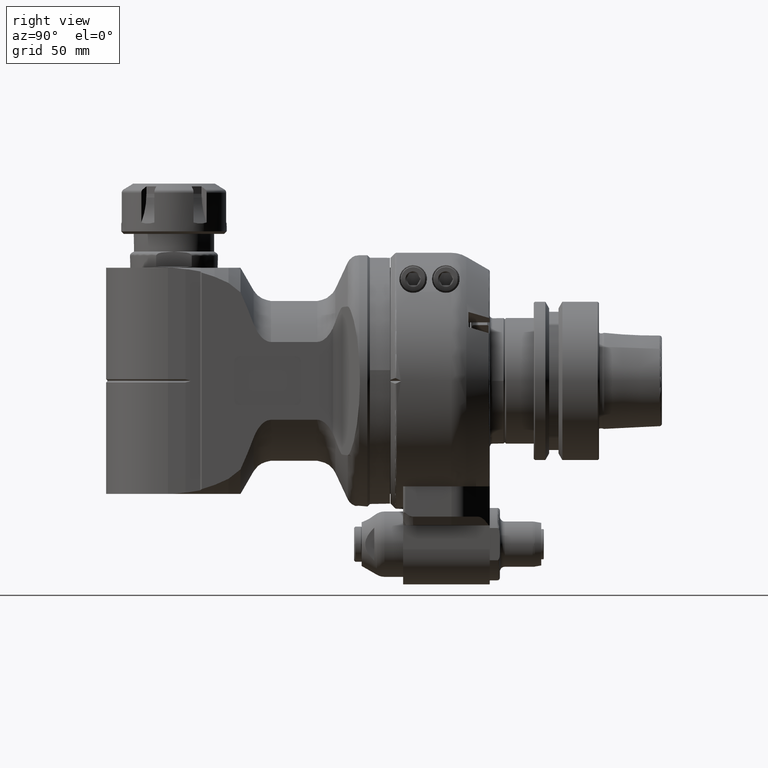
[diagram: clean part render]
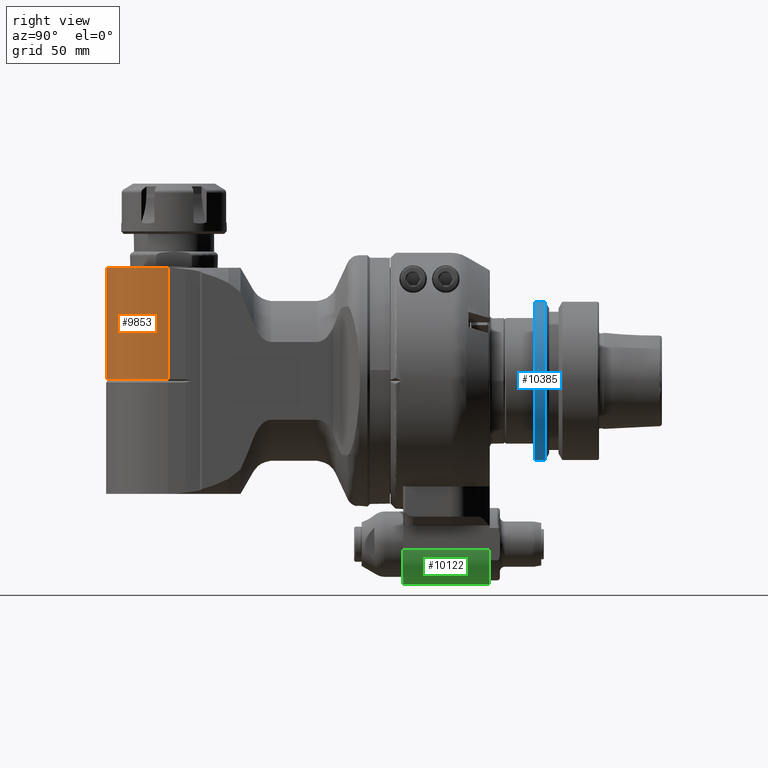
[diagram: same view with three faces highlighted in distinct colors, each labeled with its STEP entity id]
A machine part, right view with three faces highlighted in distinct colors.
Their STEP definitions:

[orange] entity #9853 — the highlighted cylindrical surface (partial cylindrical patch) has radius 27 mm, axis along (-0, 0, -1).
#608=CYLINDRICAL_SURFACE('',#10594,27.);
#811=CIRCLE('',#10592,27.);
#813=CIRCLE('',#10595,27.);
#1382=FACE_OUTER_BOUND('',#2006,.T.);
#2006=EDGE_LOOP('',(#6784,#6785,#6786,#6787));
#2701=LINE('',#15636,#3355);
#2702=LINE('',#15639,#3356);
#3355=VECTOR('',#11999,44.33431457505);
#3356=VECTOR('',#12002,44.33431457505);
#4089=VERTEX_POINT('',#15600);
#4090=VERTEX_POINT('',#15601);
#4098=VERTEX_POINT('',#15635);
#4099=VERTEX_POINT('',#15637);
#5127=EDGE_CURVE('',#4089,#4090,#811,.T.);
#5137=EDGE_CURVE('',#4089,#4098,#2701,.T.);
#5138=EDGE_CURVE('',#4099,#4098,#813,.T.);
#5139=EDGE_CURVE('',#4099,#4090,#2702,.T.);
#6784=ORIENTED_EDGE('',*,*,#5127,.F.);
#6785=ORIENTED_EDGE('',*,*,#5137,.T.);
#6786=ORIENTED_EDGE('',*,*,#5138,.F.);
#6787=ORIENTED_EDGE('',*,*,#5139,.T.);
#9853=ADVANCED_FACE('',(#1382),#608,.T.);
#10592=AXIS2_PLACEMENT_3D('',#15602,#11991,#11992);
#10594=AXIS2_PLACEMENT_3D('',#15634,#11997,#11998);
#10595=AXIS2_PLACEMENT_3D('',#15638,#12000,#12001);
#11991=DIRECTION('center_axis',(0.,-1.,0.));
#11992=DIRECTION('ref_axis',(0.0871557427475262,0.,-0.996194698091757));
#11997=DIRECTION('center_axis',(0.,1.,0.));
#11998=DIRECTION('ref_axis',(1.,0.,1.22464679914735E-16));
#11999=DIRECTION('',(2.660469554266E-14,1.,0.));
#12000=DIRECTION('center_axis',(0.,1.,0.));
#12001=DIRECTION('ref_axis',(1.,0.,0.));
#12002=DIRECTION('',(2.75663110442E-14,-1.,0.));
#15600=CARTESIAN_POINT('',(92.35320505419,-45.,-26.89725684848));
#15601=CARTESIAN_POINT('',(92.35320505419,-45.,26.89725684848));
#15602=CARTESIAN_POINT('Origin',(90.,-45.,0.));
#15634=CARTESIAN_POINT('Origin',(90.,-54.0000024,0.));
#15635=CARTESIAN_POINT('',(92.35320505419,-0.6656854249492,-26.89725684848));
#15636=CARTESIAN_POINT('',(92.35320505419,-45.,-26.89725684848));
#15637=CARTESIAN_POINT('',(92.35320505419,-0.6656854249492,26.89725684848));
#15638=CARTESIAN_POINT('Origin',(90.,-0.6656854249492,0.));
#15639=CARTESIAN_POINT('',(92.35320505419,-0.6656854249492,26.89725684848));

[blue] entity #10385 — the highlighted cylindrical surface (bore or boss wall) has radius 31.5 mm, axis along (0, 1, 0).
#750=CYLINDRICAL_SURFACE('',#11654,31.5);
#1308=CIRCLE('',#11652,31.5);
#1309=CIRCLE('',#11653,31.5);
#1310=CIRCLE('',#11655,31.5);
#1914=FACE_OUTER_BOUND('',#2616,.T.);
#2616=EDGE_LOOP('',(#9372,#9373,#9374,#9375,#9376));
#3270=LINE('',#21110,#3924);
#3924=VECTOR('',#14688,31.5);
#4907=VERTEX_POINT('',#21103);
#4908=VERTEX_POINT('',#21104);
#4909=VERTEX_POINT('',#21109);
#6403=EDGE_CURVE('',#4907,#4908,#1308,.T.);
#6405=EDGE_CURVE('',#4908,#4907,#1309,.T.);
#6406=EDGE_CURVE('',#4907,#4909,#3270,.T.);
#6407=EDGE_CURVE('',#4909,#4909,#1310,.T.);
#9372=ORIENTED_EDGE('',*,*,#6403,.F.);
#9373=ORIENTED_EDGE('',*,*,#6406,.T.);
#9374=ORIENTED_EDGE('',*,*,#6407,.F.);
#9375=ORIENTED_EDGE('',*,*,#6406,.F.);
#9376=ORIENTED_EDGE('',*,*,#6405,.F.);
#10385=ADVANCED_FACE('',(#1914),#750,.T.);
#11652=AXIS2_PLACEMENT_3D('',#21105,#14681,#14682);
#11653=AXIS2_PLACEMENT_3D('',#21107,#14684,#14685);
#11654=AXIS2_PLACEMENT_3D('',#21108,#14686,#14687);
#11655=AXIS2_PLACEMENT_3D('',#21111,#14689,#14690);
#14681=DIRECTION('center_axis',(0.,1.,0.));
#14682=DIRECTION('ref_axis',(0.,0.,1.));
#14684=DIRECTION('center_axis',(0.,1.,0.));
#14685=DIRECTION('ref_axis',(0.,0.,1.));
#14686=DIRECTION('center_axis',(0.,1.,0.));
#14687=DIRECTION('ref_axis',(0.,0.,-1.));
#14688=DIRECTION('',(0.,-1.,0.));
#14689=DIRECTION('center_axis',(0.,-1.,0.));
#14690=DIRECTION('ref_axis',(0.707106781186547,0.,0.707106781186547));
#21103=CARTESIAN_POINT('',(3.85763741731416E-15,61.62250092524,31.5));
#21104=CARTESIAN_POINT('',(3.85763741731431E-15,61.6225009252421,-31.5000000000012));
#21105=CARTESIAN_POINT('Origin',(0.,61.62250092524,0.));
#21107=CARTESIAN_POINT('Origin',(0.,61.62250092524,0.));
#21108=CARTESIAN_POINT('Origin',(0.,54.9,0.));
#21109=CARTESIAN_POINT('',(3.85763741731416E-15,57.5,31.5));
#21110=CARTESIAN_POINT('',(3.85763741731416E-15,54.9,31.5));
#21111=CARTESIAN_POINT('Origin',(0.,57.5,0.));

[green] entity #10122 — the highlighted cylindrical surface (edge-blend (fillet) strip) has radius 14 mm, axis along (0, 1, 0).
#692=CYLINDRICAL_SURFACE('',#11145,14.);
#986=CIRCLE('',#10982,14.);
#1059=CIRCLE('',#11119,14.);
#1651=FACE_OUTER_BOUND('',#2313,.T.);
#2313=EDGE_LOOP('',(#8120,#8121,#8122,#8123));
#3004=LINE('',#19020,#3658);
#3005=LINE('',#19035,#3659);
#3658=VECTOR('',#13396,34.5);
#3659=VECTOR('',#13405,34.5);
#4382=VERTEX_POINT('',#17208);
#4383=VERTEX_POINT('',#17210);
#4526=VERTEX_POINT('',#18825);
#4527=VERTEX_POINT('',#18827);
#5578=EDGE_CURVE('',#4382,#4383,#986,.T.);
#5785=EDGE_CURVE('',#4526,#4527,#1059,.T.);
#5821=EDGE_CURVE('',#4382,#4527,#3004,.T.);
#5825=EDGE_CURVE('',#4526,#4383,#3005,.T.);
#8120=ORIENTED_EDGE('',*,*,#5825,.T.);
#8121=ORIENTED_EDGE('',*,*,#5578,.F.);
#8122=ORIENTED_EDGE('',*,*,#5821,.T.);
#8123=ORIENTED_EDGE('',*,*,#5785,.F.);
#10122=ADVANCED_FACE('',(#1651),#692,.T.);
#10982=AXIS2_PLACEMENT_3D('',#17211,#12961,#12962);
#11119=AXIS2_PLACEMENT_3D('',#18828,#13329,#13330);
#11145=AXIS2_PLACEMENT_3D('',#19034,#13403,#13404);
#12961=DIRECTION('center_axis',(0.,1.,0.));
#12962=DIRECTION('ref_axis',(1.,0.,0.));
#13329=DIRECTION('center_axis',(0.,-1.,0.));
#13330=DIRECTION('ref_axis',(0.,0.,-1.));
#13396=DIRECTION('',(0.,-1.,0.));
#13403=DIRECTION('center_axis',(0.,1.,0.));
#13404=DIRECTION('ref_axis',(0.,0.,1.));
#13405=DIRECTION('',(0.,1.,0.));
#17208=CARTESIAN_POINT('',(15.,39.5,-67.));
#17210=CARTESIAN_POINT('',(1.,39.5,-81.));
#17211=CARTESIAN_POINT('Origin',(1.,39.5,-67.));
#18825=CARTESIAN_POINT('',(1.,5.,-81.));
#18827=CARTESIAN_POINT('',(15.,5.,-67.));
#18828=CARTESIAN_POINT('Origin',(1.,5.,-67.));
#19020=CARTESIAN_POINT('',(15.,39.5,-67.));
#19034=CARTESIAN_POINT('Origin',(1.,31.,-67.));
#19035=CARTESIAN_POINT('',(1.,5.,-81.));